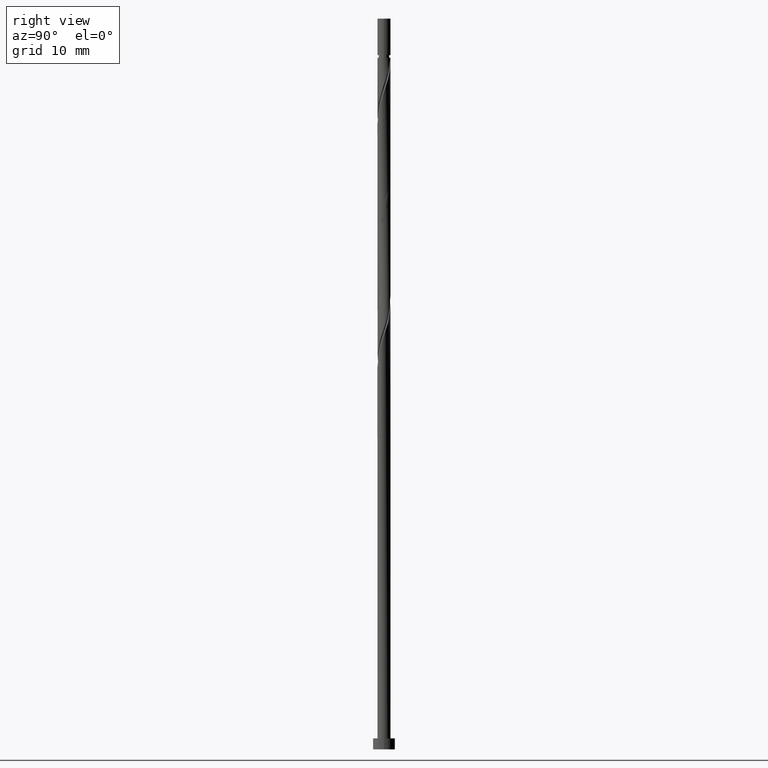
[diagram: clean part render]
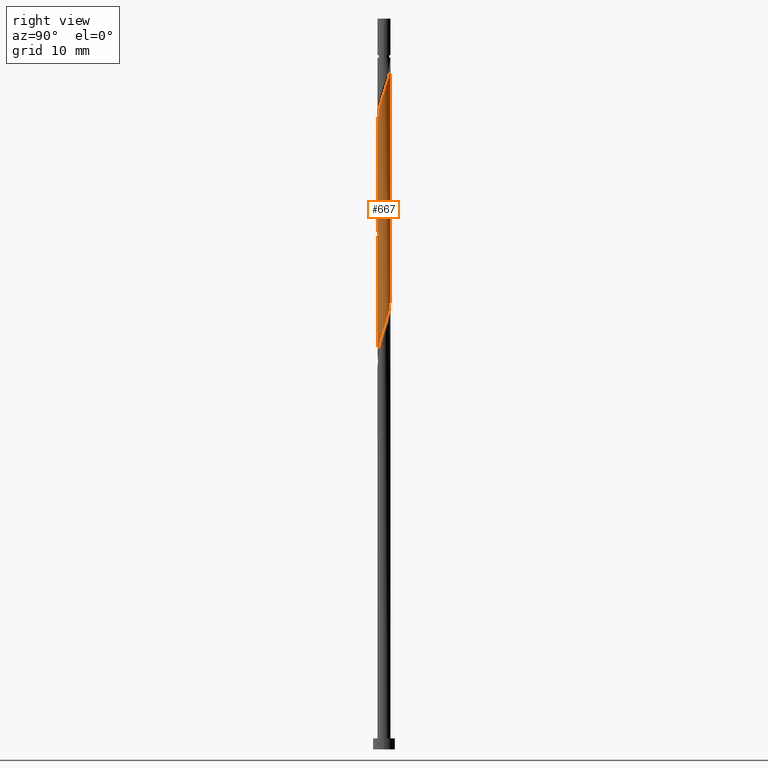
[diagram: same view with one face highlighted and labeled with its STEP entity id]
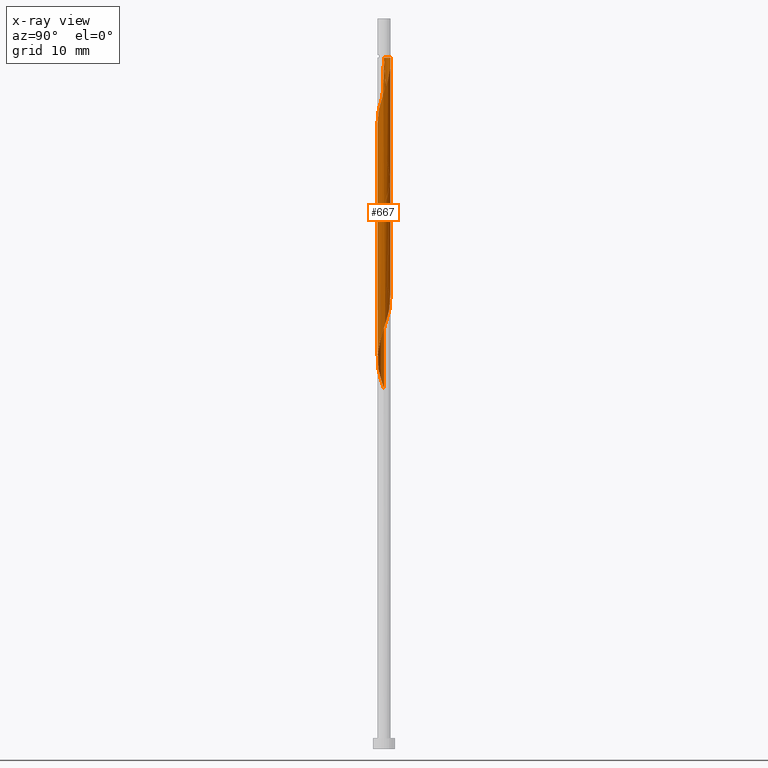
[diagram: x-ray of the same camera — body ghosted, the highlighted face saturated]
A machine part, right view. The second image highlights one B-rep face of the part: STEP entity #667.
The next image is the same camera in x-ray: the body ghosted, the highlighted face saturated — about 0% of this face is hidden behind the body in this view.
In plain terms, the highlighted cylindrical surface (bore or boss wall) has radius 0.9 mm, axis along (-0, -0, -1).
Its self-contained STEP definition (entity closure, byte-faithful):
#3 = CARTESIAN_POINT ( 'NONE',  ( -0.8956062716832284831, -0.1818606099834099432, 82.13896342679811369 ) ) ;
#21 = ORIENTED_EDGE ( 'NONE', *, *, #1272, .F. ) ;
#24 = CARTESIAN_POINT ( 'NONE',  ( -0.5691764608580708318, 0.7149979242955548653, 80.28711157494623762 ) ) ;
#31 = CARTESIAN_POINT ( 'NONE',  ( 0.2903072276482477898, 0.8665480880580483936, 93.25007453790922796 ) ) ;
#36 = AXIS2_PLACEMENT_3D ( 'NONE', #1071, #1279, #1167 ) ;
#40 = CARTESIAN_POINT ( 'NONE',  ( -0.6742855367982802939, -0.5961031914565271261, 83.52785231568698521 ) ) ;
#51 = CARTESIAN_POINT ( 'NONE',  ( -0.8533832754774720586, -0.2858968085434737683, 66.86118564902032801 ) ) ;
#53 = LINE ( 'NONE', #1092, #716 ) ;
#58 = CARTESIAN_POINT ( 'NONE',  ( -0.4699585898495196590, -0.7675538572808123794, 52.04637083420550425 ) ) ;
#61 = CARTESIAN_POINT ( 'NONE',  ( 0.8956062716832288162, -0.1818606099834101653, 73.80563009346477088 ) ) ;
#73 = VERTEX_POINT ( 'NONE', #767 ) ;
#75 = CARTESIAN_POINT ( 'NONE',  ( 0.000000000000000000, 0.000000000000000000, 100.0000000000000000 ) ) ;
#82 = EDGE_CURVE ( 'NONE', #1060, #73, #53, .T. ) ;
#104 = CARTESIAN_POINT ( 'NONE',  ( -0.9000000000000013545, -0.01161150689881702835, 81.64212591240837469 ) ) ;
#119 = VERTEX_POINT ( 'NONE', #911 ) ;
#120 = LINE ( 'NONE', #962, #1353 ) ;
#133 = EDGE_CURVE ( 'NONE', #1290, #119, #1142, .T. ) ;
#137 = CARTESIAN_POINT ( 'NONE',  ( 0.3346181356640575699, -0.8504202364869859476, 86.76859305642773279 ) ) ;
#140 = CARTESIAN_POINT ( 'NONE',  ( 0.8956062716832288162, -0.1818606099834101653, 57.13896342679810658 ) ) ;
#145 = CARTESIAN_POINT ( 'NONE',  ( 0.8375004422108590640, 0.3295345343004545957, 90.93525972309438998 ) ) ;
#150 = CARTESIAN_POINT ( 'NONE',  ( -0.5691764608580708318, 0.7149979242955548653, 63.62044490827960175 ) ) ;
#158 = CARTESIAN_POINT ( 'NONE',  ( -0.2903072276482472902, 0.8665480880580487266, 62.69451898235364951 ) ) ;
#164 = CARTESIAN_POINT ( 'NONE',  ( -0.6742855367982805159, 0.5961031914565275702, 64.08340787124254234 ) ) ;
#171 = CARTESIAN_POINT ( 'NONE',  ( 0.8375004422108591751, -0.3295345343004550398, 56.67600046383513757 ) ) ;
#181 = CYLINDRICAL_SURFACE ( 'NONE', #1245, 0.9000000000000000222 ) ;
#191 = LINE ( 'NONE', #399, #1289 ) ;
#198 = CARTESIAN_POINT ( 'NONE',  ( 0.9000000000000012434, 4.444342547700876022E-16, 74.33648498178685315 ) ) ;
#201 =( BOUNDED_CURVE ( )  B_SPLINE_CURVE ( 2, ( #1275, #104, #942, #3, #216, #1058, #40, #875, #867, #1182, #348, #332, #969, #137, #656, #1191, #250, #672, #340, #1293, #242, #557, #145, #1073, #566, #1176, #550, #31, #1193, #268, #985 ),
 .UNSPECIFIED., .F., .T. ) 
 B_SPLINE_CURVE_WITH_KNOTS ( ( 3, 2, 2, 2, 2, 2, 2, 2, 2, 2, 2, 2, 2, 2, 2, 3 ),
 ( 0.5545248053855289516, 0.5555555555555555802, 0.5694444444444444198, 0.5833333333333332593, 0.5972222222222223209, 0.6111111111111112715, 0.6250000000000001110, 0.6388888888888889506, 0.6527777777777779011, 0.6666666666666669627, 0.6805555555555558023, 0.6944444444444446418, 0.7083333333333334814, 0.7222222222222225430, 0.7361111111111114935, 0.7500000000000003331 ),
 .UNSPECIFIED. ) 
 CURVE ( )  GEOMETRIC_REPRESENTATION_ITEM ( )  RATIONAL_B_SPLINE_CURVE ( ( 0.9071930855141249195, 0.9080659294509726420, 0.9090909090909128354, 0.8952797754656471874, 0.9090909090909128354, 0.8952797754656471874, 0.9090909090909128354, 0.8952797754656471874, 0.9090909090909128354, 0.8952797754656471874, 0.9090909090909128354, 0.8952797754656471874, 0.9090909090909128354, 0.8952797754656471874, 0.9090909090909128354, 0.8952797754656471874, 0.9090909090909128354, 0.8952797754656471874, 0.9090909090909128354, 0.8952797754656471874, 0.9090909090909128354, 0.8952797754656471874, 0.9090909090909128354, 0.8952797754656471874, 0.9090909090909128354, 0.8952797754656471874, 0.9090909090909128354, 0.8952797754656471874, 0.9090909090909128354, 0.8952797754656468543, 0.9090909090909131685 ) ) 
 REPRESENTATION_ITEM ( '' )  );
#206 = CARTESIAN_POINT ( 'NONE',  ( -0.4297418442531589777, 0.7907730061768017960, 79.82414861198328992 ) ) ;
#216 = CARTESIAN_POINT ( 'NONE',  ( -0.8375004422108588420, -0.3295345343004549288, 82.60192638976104718 ) ) ;
#219 = EDGE_CURVE ( 'NONE', #1060, #554, #201, .T. ) ;
#224 = CARTESIAN_POINT ( 'NONE',  ( -0.6742855367982805159, 0.5961031914565275702, 80.75007453790924217 ) ) ;
#225 = CIRCLE ( 'NONE', #36, 0.9000000000000003553 ) ;
#229 = ORIENTED_EDGE ( 'NONE', *, *, #531, .F. ) ;
#242 = CARTESIAN_POINT ( 'NONE',  ( 0.8997004341026783036, 0.02321914889598944085, 90.00933379716845195 ) ) ;
#245 = CARTESIAN_POINT ( 'NONE',  ( 0.8029719544328152159, 0.4363713048955167872, 58.99081527864994001 ) ) ;
#250 = CARTESIAN_POINT ( 'NONE',  ( 0.7041354992338979546, -0.5605293914850775217, 88.15748194531666115 ) ) ;
#261 = CARTESIAN_POINT ( 'NONE',  ( 0.8997004341026786367, -0.02321914889598976003, 57.60192638976106849 ) ) ;
#268 = CARTESIAN_POINT ( 'NONE',  ( -0.02357734169432894322, 0.9135797635130175065, 94.17600046383516599 ) ) ;
#269 = CARTESIAN_POINT ( 'NONE',  ( -0.9000000000000005773, -0.1467489346384140136, 49.76640449415248213 ) ) ;
#286 = CARTESIAN_POINT ( 'NONE',  ( 0.5691764608580708318, -0.7149979242955549763, 71.95377824161288061 ) ) ;
#290 = CARTESIAN_POINT ( 'NONE',  ( -0.3346181356640581250, -0.8504202364869859476, 69.17600046383513757 ) ) ;
#314 = CARTESIAN_POINT ( 'NONE',  ( 0.6052990440349818035, 0.6846874780746384781, 76.58340787124252813 ) ) ;
#332 = CARTESIAN_POINT ( 'NONE',  ( 0.02357734169432485968, -0.9135797635130168404, 85.84266713050178055 ) ) ;
#340 = CARTESIAN_POINT ( 'NONE',  ( 0.8533832754774717255, -0.2858968085434743234, 89.08340787124255655 ) ) ;
#348 = CARTESIAN_POINT ( 'NONE',  ( -0.1333649429769611927, -0.8900639257855327280, 85.37970416753887548 ) ) ;
#352 = CARTESIAN_POINT ( 'NONE',  ( 0.7041354992338983987, 0.5605293914850775217, 59.45377824161293034 ) ) ;
#358 = CARTESIAN_POINT ( 'NONE',  ( 0.1790977386791917370, 0.8820000000000015605, 61.30563009346476377 ) ) ;
#363 = CARTESIAN_POINT ( 'NONE',  ( 0.1333649429769610262, -0.8900639257855329500, 70.56488935272405172 ) ) ;
#367 = CARTESIAN_POINT ( 'NONE',  ( -0.6052990440349813595, -0.6846874780746388112, 51.58340787124254945 ) ) ;
#382 = DIRECTION ( 'NONE',  ( -1.000000000000000000, 0.000000000000000000, 0.000000000000000000 ) ) ;
#390 = CARTESIAN_POINT ( 'NONE',  ( -0.02357734169432547378, -0.9135797635130171734, 70.10192638976103296 ) ) ;
#399 = CARTESIAN_POINT ( 'NONE',  ( 0.9000000000000000222, 1.102182119232617788E-16, 100.0000000000000000 ) ) ;
#403 = CARTESIAN_POINT ( 'NONE',  ( -0.8375004422108591751, 0.3295345343004550953, 81.67600046383515178 ) ) ;
#413 = CARTESIAN_POINT ( 'NONE',  ( 0.1790977386791917370, 0.8820000000000015605, 77.97229676013144228 ) ) ;
#462 = CARTESIAN_POINT ( 'NONE',  ( -0.8997004341026786367, 0.02321914889598945125, 65.93525972309440419 ) ) ;
#475 = CARTESIAN_POINT ( 'NONE',  ( 0.4699585898495201586, 0.7675538572808119353, 60.37970416753884706 ) ) ;
#483 = CARTESIAN_POINT ( 'NONE',  ( -0.8029719544328151049, -0.4363713048955169538, 67.32414861198328992 ) ) ;
#487 = CARTESIAN_POINT ( 'NONE',  ( 0.8375004422108591751, -0.3295345343004550398, 73.34266713050180897 ) ) ;
#510 = CARTESIAN_POINT ( 'NONE',  ( -0.8956062716832288162, 0.1818606099834100820, 82.13896342679811369 ) ) ;
#528 = CARTESIAN_POINT ( 'NONE',  ( 0.8029719544328152159, 0.4363713048955167872, 75.65748194531663273 ) ) ;
#531 = EDGE_CURVE ( 'NONE', #1172, #119, #191, .T. ) ;
#532 = ORIENTED_EDGE ( 'NONE', *, *, #821, .F. ) ;
#542 = CARTESIAN_POINT ( 'NONE',  ( 0.02357734169432514765, 0.9135797635130168404, 78.43525972309438998 ) ) ;
#550 = CARTESIAN_POINT ( 'NONE',  ( 0.4297418442531592553, 0.7907730061768012408, 92.78711157494625184 ) ) ;
#554 = VERTEX_POINT ( 'NONE', #878 ) ;
#557 = CARTESIAN_POINT ( 'NONE',  ( 0.8956062716832284831, 0.1818606099834098599, 90.47229676013144228 ) ) ;
#561 = CARTESIAN_POINT ( 'NONE',  ( -0.9000000000000013545, -7.898978561670044057E-16, 49.33648498178687447 ) ) ;
#566 = CARTESIAN_POINT ( 'NONE',  ( 0.6742855367982801829, 0.5961031914565273482, 91.86118564902031380 ) ) ;
#569 = CARTESIAN_POINT ( 'NONE',  ( 0.4297418442531589777, -0.7907730061768017960, 54.82414861198329703 ) ) ;
#577 = CARTESIAN_POINT ( 'NONE',  ( 0.7793946127384898670, -0.4772084586175006637, 56.21303750087218276 ) ) ;
#588 = DIRECTION ( 'NONE',  ( -0.000000000000000000, -0.000000000000000000, -1.000000000000000000 ) ) ;
#595 = CARTESIAN_POINT ( 'NONE',  ( 0.2903072276482469016, -0.8665480880580487266, 54.36118564902032091 ) ) ;
#602 = CARTESIAN_POINT ( 'NONE',  ( 0.2903072276482469016, -0.8665480880580487266, 71.02785231568699942 ) ) ;
#622 =( BOUNDED_CURVE ( )  B_SPLINE_CURVE ( 2, ( #1225, #995, #1314, #61, #487, #804, #1232, #286, #1121, #602, #363, #390, #1238, #290, #812, #710, #1128, #483, #51, #1091, #462, #986, #886, #666, #164, #150, #686, #158, #1309, #902, #358, #775, #475, #895, #352, #245, #1207, #1303, #261, #140, #171, #577, #1098, #910, #569, #595, #760, #992, #1318, #1196, #58, #367, #879, #783, #1215, #269, #561 ),
 .UNSPECIFIED., .F., .T. ) 
 B_SPLINE_CURVE_WITH_KNOTS ( ( 3, 2, 2, 2, 2, 2, 2, 2, 2, 2, 2, 2, 2, 2, 2, 2, 2, 2, 2, 2, 2, 2, 2, 2, 2, 2, 2, 2, 3 ),
 ( 0.5545248053855289516, 0.5555555555555555802, 0.5694444444444444198, 0.5833333333333333703, 0.5972222222222222099, 0.6111111111111111605, 0.6250000000000000000, 0.6388888888888888395, 0.6527777777777777901, 0.6666666666666666297, 0.6805555555555555802, 0.6944444444444444198, 0.7083333333333333703, 0.7222222222222222099, 0.7361111111111111605, 0.7500000000000000000, 0.7638888888888888395, 0.7777777777777777901, 0.7916666666666666297, 0.8055555555555555802, 0.8194444444444444198, 0.8333333333333333703, 0.8472222222222222099, 0.8611111111111111605, 0.8750000000000000000, 0.8888888888888888395, 0.9027777777777777901, 0.9166666666666666297, 0.9295248053855288406 ),
 .UNSPECIFIED. ) 
 CURVE ( )  GEOMETRIC_REPRESENTATION_ITEM ( )  RATIONAL_B_SPLINE_CURVE ( ( 0.9071930855141259187, 0.9080659294509736412, 0.9090909090909138346, 0.8952797754656482976, 0.9090909090909138346, 0.8952797754656482976, 0.9090909090909138346, 0.8952797754656482976, 0.9090909090909138346, 0.8952797754656482976, 0.9090909090909138346, 0.8952797754656482976, 0.9090909090909138346, 0.8952797754656482976, 0.9090909090909138346, 0.8952797754656482976, 0.9090909090909138346, 0.8952797754656482976, 0.9090909090909138346, 0.8952797754656482976, 0.9090909090909138346, 0.8952797754656482976, 0.9090909090909138346, 0.8952797754656482976, 0.9090909090909138346, 0.8952797754656482976, 0.9090909090909138346, 0.8952797754656482976, 0.9090909090909138346, 0.8952797754656482976, 0.9090909090909138346, 0.8952797754656482976, 0.9090909090909138346, 0.8952797754656482976, 0.9090909090909138346, 0.8952797754656482976, 0.9090909090909138346, 0.8952797754656482976, 0.9090909090909138346, 0.8952797754656482976, 0.9090909090909138346, 0.8952797754656482976, 0.9090909090909138346, 0.8952797754656482976, 0.9090909090909138346, 0.8952797754656482976, 0.9090909090909138346, 0.8952797754656482976, 0.9090909090909138346, 0.8952797754656482976, 0.9090909090909138346, 0.8952797754656482976, 0.9090909090909138346, 0.8952797754656482976, 0.9090909090909138346, 0.8963047551055886020, 0.9071930855141256966 ) ) 
 REPRESENTATION_ITEM ( '' )  );
#631 = ORIENTED_EDGE ( 'NONE', *, *, #219, .F. ) ;
#647 = CARTESIAN_POINT ( 'NONE',  ( 0.3346181356640579585, 0.8504202364869859476, 77.50933379716846616 ) ) ;
#656 = CARTESIAN_POINT ( 'NONE',  ( 0.4699585898495194369, -0.7675538572808121573, 87.23155601939069470 ) ) ;
#664 = DIRECTION ( 'NONE',  ( -0.000000000000000000, -0.000000000000000000, -1.000000000000000000 ) ) ;
#666 = CARTESIAN_POINT ( 'NONE',  ( -0.7793946127384899780, 0.4772084586175002752, 64.54637083420550425 ) ) ;
#667 = ADVANCED_FACE ( 'NONE', ( #1343 ), #181, .T. ) ;
#668 = CARTESIAN_POINT ( 'NONE',  ( -0.9000000000000012434, 3.622699387621722509E-16, 82.66981831512015333 ) ) ;
#672 = CARTESIAN_POINT ( 'NONE',  ( 0.8029719544328148828, -0.4363713048955170648, 88.62044490827958043 ) ) ;
#686 = CARTESIAN_POINT ( 'NONE',  ( -0.4297418442531589777, 0.7907730061768017960, 63.15748194531663273 ) ) ;
#687 = ORIENTED_EDGE ( 'NONE', *, *, #1040, .T. ) ;
#710 = CARTESIAN_POINT ( 'NONE',  ( -0.6052990440349813595, -0.6846874780746388112, 68.25007453790922796 ) ) ;
#716 = VECTOR ( 'NONE', #588, 1000.000000000000000 ) ;
#722 = CARTESIAN_POINT ( 'NONE',  ( 0.4699585898495201586, 0.7675538572808119353, 77.04637083420550425 ) ) ;
#727 = CARTESIAN_POINT ( 'NONE',  ( -0.7793946127384899780, 0.4772084586175002752, 81.21303750087218987 ) ) ;
#732 = CARTESIAN_POINT ( 'NONE',  ( 0.8533832754774719476, 0.2858968085434740458, 75.19451898235365661 ) ) ;
#738 = CARTESIAN_POINT ( 'NONE',  ( -0.9000000000000003553, 0.000000000000000000, 94.63896342679809948 ) ) ;
#754 = CARTESIAN_POINT ( 'NONE',  ( -0.9000000000000012434, 3.622699387621722509E-16, 82.66981831512016754 ) ) ;
#760 = CARTESIAN_POINT ( 'NONE',  ( 0.1333649429769610262, -0.8900639257855329500, 53.89822268605737321 ) ) ;
#767 = CARTESIAN_POINT ( 'NONE',  ( -0.9000000000000013545, -7.898978561670044057E-16, 49.33648498178687447 ) ) ;
#775 = CARTESIAN_POINT ( 'NONE',  ( 0.3346181356640579585, 0.8504202364869859476, 60.84266713050179476 ) ) ;
#783 = CARTESIAN_POINT ( 'NONE',  ( -0.8029719544328151049, -0.4363713048955169538, 50.65748194531661852 ) ) ;
#787 = DIRECTION ( 'NONE',  ( -0.000000000000000000, -0.000000000000000000, -1.000000000000000000 ) ) ;
#804 = CARTESIAN_POINT ( 'NONE',  ( 0.7793946127384898670, -0.4772084586175006637, 72.87970416753883285 ) ) ;
#807 = CARTESIAN_POINT ( 'NONE',  ( -0.8997004341026786367, 0.02321914889598945125, 82.60192638976106139 ) ) ;
#812 = CARTESIAN_POINT ( 'NONE',  ( -0.4699585898495196590, -0.7675538572808123794, 68.71303750087216144 ) ) ;
#821 = EDGE_CURVE ( 'NONE', #119, #73, #622, .T. ) ;
#831 = CARTESIAN_POINT ( 'NONE',  ( -0.2903072276482472902, 0.8665480880580487266, 79.36118564902034223 ) ) ;
#845 = CARTESIAN_POINT ( 'NONE',  ( -0.9000000000000010214, -2.838403643909805734E-16, 81.60810853847601720 ) ) ;
#867 = CARTESIAN_POINT ( 'NONE',  ( -0.4297418442531591998, -0.7907730061768013519, 84.45377824161290903 ) ) ;
#875 = CARTESIAN_POINT ( 'NONE',  ( -0.5691764608580706097, -0.7149979242955547543, 83.99081527864996133 ) ) ;
#878 = CARTESIAN_POINT ( 'NONE',  ( -0.1790977386791912096, 0.8820000000000007834, 94.63896342679809948 ) ) ;
#879 = CARTESIAN_POINT ( 'NONE',  ( -0.7041354992338983987, -0.5605293914850776327, 51.12044490827958043 ) ) ;
#886 = CARTESIAN_POINT ( 'NONE',  ( -0.8375004422108591751, 0.3295345343004550953, 65.00933379716846616 ) ) ;
#895 = CARTESIAN_POINT ( 'NONE',  ( 0.6052990440349818035, 0.6846874780746384781, 59.91674120457587804 ) ) ;
#902 = CARTESIAN_POINT ( 'NONE',  ( 0.02357734169432514765, 0.9135797635130168404, 61.76859305642774700 ) ) ;
#910 = CARTESIAN_POINT ( 'NONE',  ( 0.5691764608580708318, -0.7149979242955549763, 55.28711157494625184 ) ) ;
#911 = CARTESIAN_POINT ( 'NONE',  ( 0.9000000000000013545, 4.444342547700876022E-16, 74.33648498178685315 ) ) ;
#942 = CARTESIAN_POINT ( 'NONE',  ( -0.8997004341026783036, -0.02321914889598936105, 81.67600046383513757 ) ) ;
#954 = EDGE_LOOP ( 'NONE', ( #21, #687, #631, #980, #532, #229, #1188, #1267 ) ) ;
#962 = CARTESIAN_POINT ( 'NONE',  ( -0.9000000000000000222, 0.000000000000000000, 100.0000000000000000 ) ) ;
#969 = CARTESIAN_POINT ( 'NONE',  ( 0.1790977386791913761, -0.8820000000000012275, 86.30563009346477088 ) ) ;
#980 = ORIENTED_EDGE ( 'NONE', *, *, #82, .T. ) ;
#985 = CARTESIAN_POINT ( 'NONE',  ( -0.1790977386791912096, 0.8820000000000007834, 94.63896342679809948 ) ) ;
#986 = CARTESIAN_POINT ( 'NONE',  ( -0.8956062716832288162, 0.1818606099834100820, 65.47229676013144228 ) ) ;
#992 = CARTESIAN_POINT ( 'NONE',  ( -0.02357734169432547378, -0.9135797635130171734, 53.43525972309440419 ) ) ;
#995 = CARTESIAN_POINT ( 'NONE',  ( 0.9000000000000012434, -0.01161150689881752969, 74.30246760785449567 ) ) ;
#1035 = CARTESIAN_POINT ( 'NONE',  ( 0.9000000000000011324, 0.1467489346384122650, 74.76640449415248213 ) ) ;
#1040 = EDGE_CURVE ( 'NONE', #1285, #554, #225, .T. ) ;
#1051 = DIRECTION ( 'NONE',  ( -0.000000000000000000, -0.000000000000000000, -1.000000000000000000 ) ) ;
#1058 = CARTESIAN_POINT ( 'NONE',  ( -0.7793946127384899780, -0.4772084586175001086, 83.06488935272403751 ) ) ;
#1060 = VERTEX_POINT ( 'NONE', #845 ) ;
#1066 = CARTESIAN_POINT ( 'NONE',  ( 0.9000000000000000222, 1.102182119232617788E-16, 94.63896342679809948 ) ) ;
#1071 = CARTESIAN_POINT ( 'NONE',  ( 0.000000000000000000, 0.000000000000000000, 94.63896342679809948 ) ) ;
#1073 = CARTESIAN_POINT ( 'NONE',  ( 0.7793946127384902001, 0.4772084586174996090, 91.39822268605736610 ) ) ;
#1091 = CARTESIAN_POINT ( 'NONE',  ( -0.9037945965221290123, -0.1354223121914311934, 66.39822268605735189 ) ) ;
#1092 = CARTESIAN_POINT ( 'NONE',  ( -0.9000000000000000222, 0.000000000000000000, 100.0000000000000000 ) ) ;
#1098 = CARTESIAN_POINT ( 'NONE',  ( 0.6742855367982802939, -0.5961031914565280143, 55.75007453790920664 ) ) ;
#1121 = CARTESIAN_POINT ( 'NONE',  ( 0.4297418442531589777, -0.7907730061768017960, 71.49081527864994712 ) ) ;
#1128 = CARTESIAN_POINT ( 'NONE',  ( -0.7041354992338983987, -0.5605293914850776327, 67.78711157494625184 ) ) ;
#1142 =( BOUNDED_CURVE ( )  B_SPLINE_CURVE ( 2, ( #668, #1338, #807, #510, #403, #727, #224, #24, #206, #831, #1264, #542, #413, #647, #722, #314, #1160, #528, #732, #1035, #198 ),
 .UNSPECIFIED., .F., .T. ) 
 B_SPLINE_CURVE_WITH_KNOTS ( ( 3, 2, 2, 2, 2, 2, 2, 2, 2, 2, 3 ),
 ( 0.4295248053855295067, 0.4305555555555555802, 0.4444444444444444198, 0.4583333333333333148, 0.4722222222222222099, 0.4861111111111111049, 0.5000000000000000000, 0.5138888888888888395, 0.5277777777777777901, 0.5416666666666666297, 0.5545248053855289516 ),
 .UNSPECIFIED. ) 
 CURVE ( )  GEOMETRIC_REPRESENTATION_ITEM ( )  RATIONAL_B_SPLINE_CURVE ( ( 0.9071930855141268069, 0.9080659294509741963, 0.9090909090909138346, 0.8952797754656482976, 0.9090909090909138346, 0.8952797754656482976, 0.9090909090909138346, 0.8952797754656482976, 0.9090909090909138346, 0.8952797754656482976, 0.9090909090909138346, 0.8952797754656482976, 0.9090909090909138346, 0.8952797754656482976, 0.9090909090909138346, 0.8952797754656482976, 0.9090909090909138346, 0.8952797754656482976, 0.9090909090909138346, 0.8963047551055884909, 0.9071930855141259187 ) ) 
 REPRESENTATION_ITEM ( '' )  );
#1160 = CARTESIAN_POINT ( 'NONE',  ( 0.7041354992338983987, 0.5605293914850775217, 76.12044490827958043 ) ) ;
#1167 = DIRECTION ( 'NONE',  ( -1.000000000000000000, 0.000000000000000000, 0.000000000000000000 ) ) ;
#1172 = VERTEX_POINT ( 'NONE', #1066 ) ;
#1176 = CARTESIAN_POINT ( 'NONE',  ( 0.5691764608580706097, 0.7149979242955546432, 92.32414861198330414 ) ) ;
#1182 = CARTESIAN_POINT ( 'NONE',  ( -0.2903072276482472902, -0.8665480880580486156, 84.91674120457591357 ) ) ;
#1188 = ORIENTED_EDGE ( 'NONE', *, *, #531, .T. ) ;
#1191 = CARTESIAN_POINT ( 'NONE',  ( 0.6052990440349810264, -0.6846874780746388112, 87.69451898235364240 ) ) ;
#1193 = CARTESIAN_POINT ( 'NONE',  ( 0.1333649429769616646, 0.8900639257855326170, 93.71303750087218987 ) ) ;
#1196 = CARTESIAN_POINT ( 'NONE',  ( -0.3346181356640581250, -0.8504202364869859476, 52.50933379716847327 ) ) ;
#1207 = CARTESIAN_POINT ( 'NONE',  ( 0.8533832754774719476, 0.2858968085434740458, 58.52785231568699231 ) ) ;
#1215 = CARTESIAN_POINT ( 'NONE',  ( -0.8533832754774720586, -0.2858968085434737683, 50.19451898235365661 ) ) ;
#1225 = CARTESIAN_POINT ( 'NONE',  ( 0.9000000000000012434, 4.444342547700876022E-16, 74.33648498178685315 ) ) ;
#1232 = CARTESIAN_POINT ( 'NONE',  ( 0.6742855367982802939, -0.5961031914565280143, 72.41674120457588515 ) ) ;
#1238 = CARTESIAN_POINT ( 'NONE',  ( -0.1790977386791915982, -0.8820000000000015605, 69.63896342679812790 ) ) ;
#1245 = AXIS2_PLACEMENT_3D ( 'NONE', #75, #787, #382 ) ;
#1264 = CARTESIAN_POINT ( 'NONE',  ( -0.1333649429769610817, 0.8900639257855329500, 78.89822268605738032 ) ) ;
#1267 = ORIENTED_EDGE ( 'NONE', *, *, #133, .F. ) ;
#1272 = EDGE_CURVE ( 'NONE', #1285, #1290, #120, .T. ) ;
#1275 = CARTESIAN_POINT ( 'NONE',  ( -0.9000000000000010214, -2.838403643909805734E-16, 81.60810853847603141 ) ) ;
#1279 = DIRECTION ( 'NONE',  ( -0.000000000000000000, -0.000000000000000000, -1.000000000000000000 ) ) ;
#1285 = VERTEX_POINT ( 'NONE', #738 ) ;
#1289 = VECTOR ( 'NONE', #664, 1000.000000000000000 ) ;
#1290 = VERTEX_POINT ( 'NONE', #754 ) ;
#1293 = CARTESIAN_POINT ( 'NONE',  ( 0.9037945965221287903, -0.1354223121914317485, 89.54637083420550425 ) ) ;
#1303 = CARTESIAN_POINT ( 'NONE',  ( 0.9037945965221290123, 0.1354223121914305827, 58.06488935272401619 ) ) ;
#1309 = CARTESIAN_POINT ( 'NONE',  ( -0.1333649429769610817, 0.8900639257855329500, 62.23155601939070181 ) ) ;
#1314 = CARTESIAN_POINT ( 'NONE',  ( 0.8997004341026786367, -0.02321914889598976003, 74.26859305642773279 ) ) ;
#1318 = CARTESIAN_POINT ( 'NONE',  ( -0.1790977386791915982, -0.8820000000000015605, 52.97229676013142097 ) ) ;
#1338 = CARTESIAN_POINT ( 'NONE',  ( -0.9000000000000011324, 0.01161150689882339999, 82.63580094118782426 ) ) ;
#1343 = FACE_OUTER_BOUND ( 'NONE', #954, .T. ) ;
#1353 = VECTOR ( 'NONE', #1051, 1000.000000000000000 ) ;